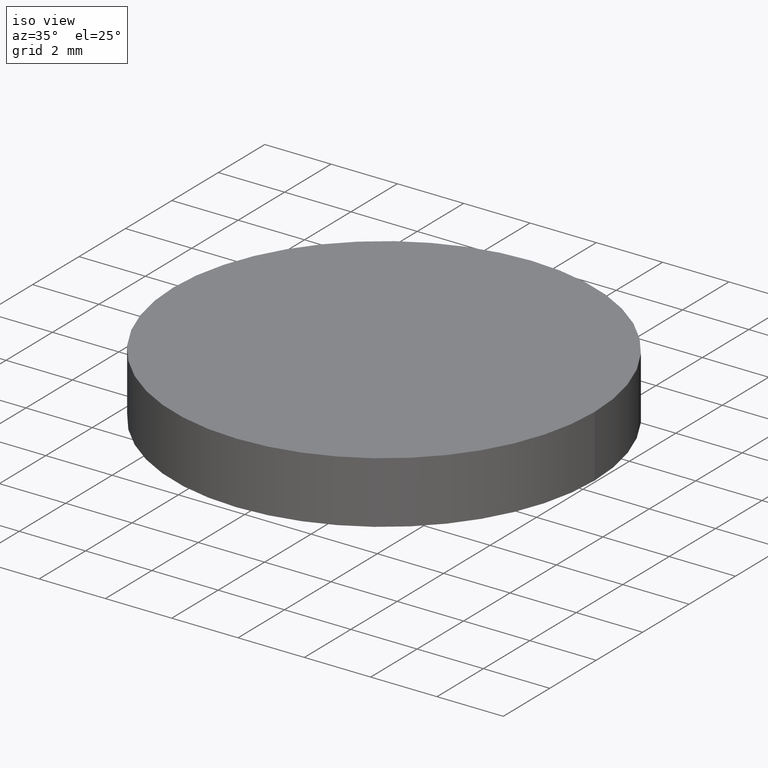
[diagram: clean part render]
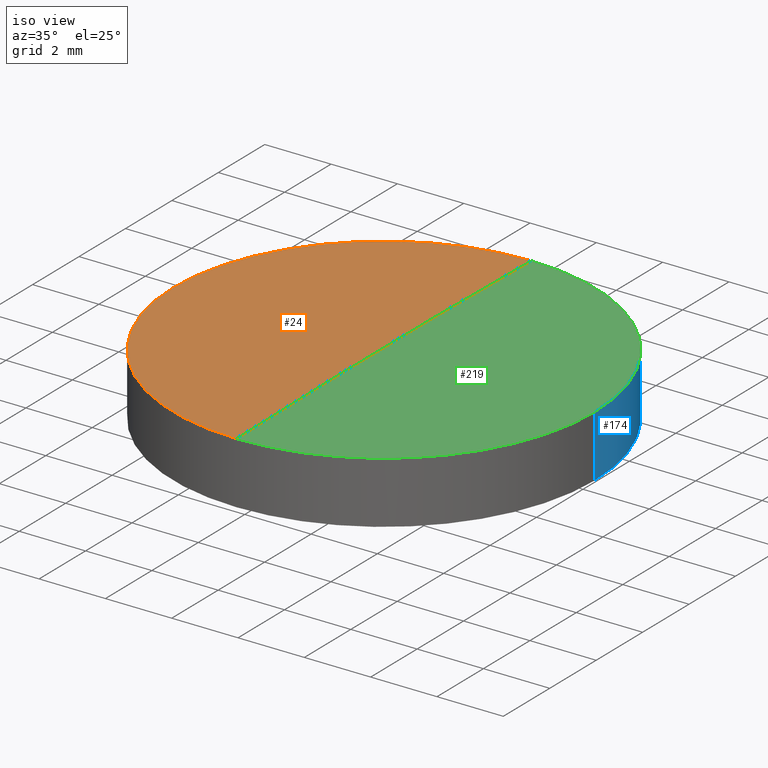
[diagram: same view with three faces highlighted in distinct colors, each labeled with its STEP entity id]
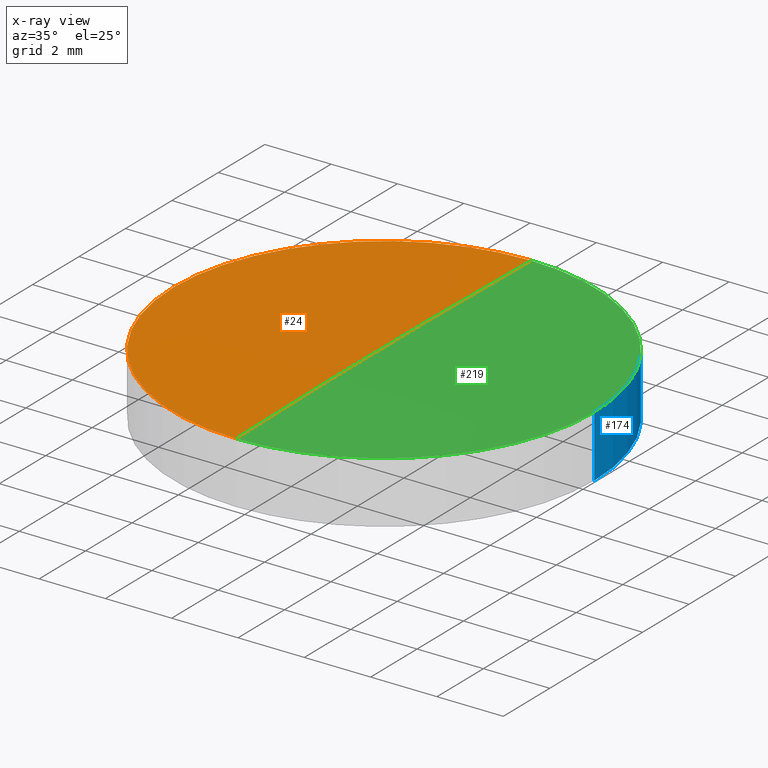
[diagram: x-ray of the same camera — body ghosted, the three highlighted faces saturated]
A machine part, iso view with three faces highlighted in distinct colors.
The next image is the same camera in x-ray (body ghosted, the three faces saturated) — at least one of them is partly hidden behind the body in this view.
Their STEP definitions:

[orange] entity #24 — the highlighted face is a freeform B-spline surface patch.
#5 = CARTESIAN_POINT ( 'NONE',  ( -6.386729902696654200, -6.426189210769681600, 1.867958086700777900 ) ) ;
#24 = ADVANCED_FACE ( 'NONE', ( #59 ), #284, .T. ) ;
#27 = CARTESIAN_POINT ( 'NONE',  ( 2.498001805406600200E-016, 1.221245327087670000E-015, 1.935145213664670100 ) ) ;
#33 = CARTESIAN_POINT ( 'NONE',  ( 9.805510406251404500E-014, 6.350000000000327400, 1.935145213664669400 ) ) ;
#48 = CIRCLE ( 'NONE', #166, 6.349999999999999600 ) ;
#49 = AXIS2_PLACEMENT_3D ( 'NONE', #27, #134, #157 ) ;
#50 = ORIENTED_EDGE ( 'NONE', *, *, #103, .F. ) ;
#51 = CARTESIAN_POINT ( 'NONE',  ( -6.388549635048087300, 2.142368200197913600, 1.956503322797171500 ) ) ;
#58 = CARTESIAN_POINT ( 'NONE',  ( 0.0000000000000000000, -5.684341886080800200E-014, -308.9000000000000300 ) ) ;
#59 = FACE_OUTER_BOUND ( 'NONE', #72, .T. ) ;
#69 = VERTEX_POINT ( 'NONE', #227 ) ;
#72 = EDGE_LOOP ( 'NONE', ( #73, #254, #50 ) ) ;
#73 = ORIENTED_EDGE ( 'NONE', *, *, #143, .F. ) ;
#77 = VERTEX_POINT ( 'NONE', #33 ) ;
#79 = CARTESIAN_POINT ( 'NONE',  ( 2.498001805406600200E-016, 1.221245327087670000E-015, 1.935145213664670100 ) ) ;
#92 = EDGE_CURVE ( 'NONE', #69, #77, #273, .T. ) ;
#99 = CARTESIAN_POINT ( 'NONE',  ( -4.259295361755425400, -2.142368200197931400, 2.000262570119215600 ) ) ;
#102 = CARTESIAN_POINT ( 'NONE',  ( -2.129703883656322900, 2.142368200197915400, 2.022143348645517600 ) ) ;
#103 = EDGE_CURVE ( 'NONE', #290, #77, #48, .T. ) ;
#111 = CIRCLE ( 'NONE', #49, 6.349999999999999600 ) ;
#115 = AXIS2_PLACEMENT_3D ( 'NONE', #58, #176, #289 ) ;
#116 = CARTESIAN_POINT ( 'NONE',  ( -6.349999999999999600, 1.998896044546239400E-015, 1.935145213664670100 ) ) ;
#128 = CARTESIAN_POINT ( 'NONE',  ( -6.388549635048085500, -2.142368200197931800, 1.956503322797170200 ) ) ;
#130 = CARTESIAN_POINT ( 'NONE',  ( 1.012582030574349000E-013, -2.142368200197929600, 2.022143348645515800 ) ) ;
#134 = DIRECTION ( 'NONE',  ( -0.0000000000000000000, -0.0000000000000000000, -1.000000000000000000 ) ) ;
#143 = EDGE_CURVE ( 'NONE', #69, #290, #111, .T. ) ;
#151 = CARTESIAN_POINT ( 'NONE',  ( 1.028311548038678000E-013, -6.426189210769679000, 1.933579415460517900 ) ) ;
#155 = CARTESIAN_POINT ( 'NONE',  ( -6.386729902696659500, 6.426189210769663000, 1.867958086700777900 ) ) ;
#157 = DIRECTION ( 'NONE',  ( 1.000000000000000000, 0.0000000000000000000, 0.0000000000000000000 ) ) ;
#166 = AXIS2_PLACEMENT_3D ( 'NONE', #79, #276, #197 ) ;
#176 = DIRECTION ( 'NONE',  ( -1.000000000000000000, -3.738639560994800200E-016, 3.230945461933270100E-016 ) ) ;
#194 = CARTESIAN_POINT ( 'NONE',  ( 9.802611376190352000E-014, 6.426189210769665600, 1.933579415460517900 ) ) ;
#197 = DIRECTION ( 'NONE',  ( 1.000000000000000000, 0.0000000000000000000, 0.0000000000000000000 ) ) ;
#220 = CARTESIAN_POINT ( 'NONE',  ( -2.129703883656321600, -2.142368200197930900, 2.022143348645516300 ) ) ;
#221 = CARTESIAN_POINT ( 'NONE',  ( -4.258082132148264700, 6.426189210769663000, 1.911704869516389600 ) ) ;
#222 = CARTESIAN_POINT ( 'NONE',  ( -2.129097252843785300, 6.426189210769663900, 1.933579415460518600 ) ) ;
#227 = CARTESIAN_POINT ( 'NONE',  ( 1.028031763049777000E-013, -6.350000000000384200, 1.935145213664669400 ) ) ;
#245 = CARTESIAN_POINT ( 'NONE',  ( -4.258082132148259400, -6.426189210769680700, 1.911704869516389600 ) ) ;
#246 = CARTESIAN_POINT ( 'NONE',  ( -4.259295361755427200, 2.142368200197915000, 2.000262570119216500 ) ) ;
#254 = ORIENTED_EDGE ( 'NONE', *, *, #92, .T. ) ;
#268 = CARTESIAN_POINT ( 'NONE',  ( 9.965629455593946100E-014, 2.142368200197915900, 2.022143348645517100 ) ) ;
#273 = CIRCLE ( 'NONE', #115, 310.9000000000000300 ) ;
#276 = DIRECTION ( 'NONE',  ( -0.0000000000000000000, -0.0000000000000000000, -1.000000000000000000 ) ) ;
#284 =( BOUNDED_SURFACE ( )  B_SPLINE_SURFACE ( 3, 3, ( 
 ( #151, #285, #245, #5 ),
 ( #130, #220, #99, #128 ),
 ( #268, #102, #246, #51 ),
 ( #194, #222, #221, #155 ) ),
 .UNSPECIFIED., .F., .F., .F. ) 
 B_SPLINE_SURFACE_WITH_KNOTS ( ( 4, 4 ),
 ( 4, 4 ),
 ( 0.0000000000000000000, 1.000000000000000000 ),
 ( 0.0000000000000000000, 1.000000000000000000 ),
 .UNSPECIFIED. ) 
 GEOMETRIC_REPRESENTATION_ITEM ( )  RATIONAL_B_SPLINE_SURFACE ( (
 ( 1.000000000000000000, 0.9999648134002164800, 0.9999648134002164800, 1.000000000000000000),
 ( 0.9998575735294530400, 0.9998223919411727300, 0.9998223919411727300, 0.9998575735294530400),
 ( 0.9998575735294530400, 0.9998223919411727300, 0.9998223919411727300, 0.9998575735294530400),
 ( 1.000000000000000000, 0.9999648134002164800, 0.9999648134002164800, 1.000000000000000000) ) ) 
 REPRESENTATION_ITEM ( '' )  SURFACE ( )  );
#285 = CARTESIAN_POINT ( 'NONE',  ( -2.129097252843780400, -6.426189210769679900, 1.933579415460518600 ) ) ;
#289 = DIRECTION ( 'NONE',  ( 3.738639560994799200E-016, -1.000000000000000000, 0.0000000000000000000 ) ) ;
#290 = VERTEX_POINT ( 'NONE', #116 ) ;

[blue] entity #174 — the highlighted cylindrical surface (partial cylindrical patch) has radius 6.35 mm, axis along (0, 0, 1).
#7 = DIRECTION ( 'NONE',  ( -0.0000000000000000000, -0.0000000000000000000, -1.000000000000000000 ) ) ;
#9 = DIRECTION ( 'NONE',  ( -0.0000000000000000000, -0.0000000000000000000, -1.000000000000000000 ) ) ;
#14 = CARTESIAN_POINT ( 'NONE',  ( 2.498001805406600200E-016, 1.221245327087670000E-015, 0.06485478633533430000 ) ) ;
#20 = LINE ( 'NONE', #110, #267 ) ;
#23 = ORIENTED_EDGE ( 'NONE', *, *, #126, .F. ) ;
#29 = CARTESIAN_POINT ( 'NONE',  ( 2.498001805406600200E-016, 1.221245327087670000E-015, 0.06485478633533430000 ) ) ;
#33 = CARTESIAN_POINT ( 'NONE',  ( 9.805510406251404500E-014, 6.350000000000327400, 1.935145213664669400 ) ) ;
#48 = CIRCLE ( 'NONE', #166, 6.349999999999999600 ) ;
#53 = DIRECTION ( 'NONE',  ( 0.0000000000000000000, 0.0000000000000000000, 1.000000000000000000 ) ) ;
#54 = ORIENTED_EDGE ( 'NONE', *, *, #123, .F. ) ;
#56 = DIRECTION ( 'NONE',  ( 1.000000000000000000, 8.881784197001252300E-016, 0.0000000000000000000 ) ) ;
#57 = DIRECTION ( 'NONE',  ( 0.0000000000000000000, 0.0000000000000000000, 1.000000000000000000 ) ) ;
#60 = EDGE_CURVE ( 'NONE', #77, #148, #117, .T. ) ;
#61 = CARTESIAN_POINT ( 'NONE',  ( -9.805510406251405700E-014, 6.350000000000327400, 0.06485478633533377200 ) ) ;
#68 = EDGE_CURVE ( 'NONE', #257, #101, #226, .T. ) ;
#74 = AXIS2_PLACEMENT_3D ( 'NONE', #291, #9, #56 ) ;
#77 = VERTEX_POINT ( 'NONE', #33 ) ;
#79 = CARTESIAN_POINT ( 'NONE',  ( 2.498001805406600200E-016, 1.221245327087670000E-015, 1.935145213664670100 ) ) ;
#80 = CARTESIAN_POINT ( 'NONE',  ( 2.498001805406600200E-016, 1.221245327087670000E-015, 1.935145213664670100 ) ) ;
#81 = EDGE_CURVE ( 'NONE', #257, #290, #135, .T. ) ;
#98 = AXIS2_PLACEMENT_3D ( 'NONE', #80, #108, #274 ) ;
#101 = VERTEX_POINT ( 'NONE', #61 ) ;
#103 = EDGE_CURVE ( 'NONE', #290, #77, #48, .T. ) ;
#108 = DIRECTION ( 'NONE',  ( -0.0000000000000000000, -0.0000000000000000000, -1.000000000000000000 ) ) ;
#110 = CARTESIAN_POINT ( 'NONE',  ( 6.349999999999999600, 1.221245327087670000E-015, 0.06485478633533430000 ) ) ;
#114 = CARTESIAN_POINT ( 'NONE',  ( -6.349999999999999600, 1.998896044546239400E-015, 0.06485478633533430000 ) ) ;
#116 = CARTESIAN_POINT ( 'NONE',  ( -6.349999999999999600, 1.998896044546239400E-015, 1.935145213664670100 ) ) ;
#117 = CIRCLE ( 'NONE', #98, 6.349999999999999600 ) ;
#122 = ORIENTED_EDGE ( 'NONE', *, *, #103, .T. ) ;
#123 = EDGE_CURVE ( 'NONE', #294, #148, #20, .T. ) ;
#126 = EDGE_CURVE ( 'NONE', #101, #294, #150, .T. ) ;
#135 = LINE ( 'NONE', #252, #218 ) ;
#136 = DIRECTION ( 'NONE',  ( 1.000000000000000000, -1.776356839400250500E-015, 0.0000000000000000000 ) ) ;
#148 = VERTEX_POINT ( 'NONE', #179 ) ;
#150 = CIRCLE ( 'NONE', #287, 6.349999999999999600 ) ;
#166 = AXIS2_PLACEMENT_3D ( 'NONE', #79, #276, #197 ) ;
#174 = ADVANCED_FACE ( 'NONE', ( #213 ), #202, .T. ) ;
#179 = CARTESIAN_POINT ( 'NONE',  ( 6.349999999999999600, 1.221245327087670000E-015, 1.935145213664670100 ) ) ;
#185 = ORIENTED_EDGE ( 'NONE', *, *, #68, .F. ) ;
#197 = DIRECTION ( 'NONE',  ( 1.000000000000000000, 0.0000000000000000000, 0.0000000000000000000 ) ) ;
#202 = CYLINDRICAL_SURFACE ( 'NONE', #265, 6.349999999999999600 ) ;
#213 = FACE_OUTER_BOUND ( 'NONE', #244, .T. ) ;
#218 = VECTOR ( 'NONE', #230, 1000.000000000000000 ) ;
#223 = DIRECTION ( 'NONE',  ( 1.000000000000000000, 0.0000000000000000000, 0.0000000000000000000 ) ) ;
#226 = CIRCLE ( 'NONE', #74, 6.349999999999999600 ) ;
#230 = DIRECTION ( 'NONE',  ( 0.0000000000000000000, 0.0000000000000000000, 1.000000000000000000 ) ) ;
#243 = ORIENTED_EDGE ( 'NONE', *, *, #60, .T. ) ;
#244 = EDGE_LOOP ( 'NONE', ( #185, #264, #122, #243, #54, #23 ) ) ;
#252 = CARTESIAN_POINT ( 'NONE',  ( -6.349999999999999600, 1.998896044546239400E-015, 0.06485478633533430000 ) ) ;
#255 = CARTESIAN_POINT ( 'NONE',  ( 6.349999999999999600, 1.221245327087670000E-015, 0.06485478633533430000 ) ) ;
#257 = VERTEX_POINT ( 'NONE', #114 ) ;
#264 = ORIENTED_EDGE ( 'NONE', *, *, #81, .T. ) ;
#265 = AXIS2_PLACEMENT_3D ( 'NONE', #14, #53, #223 ) ;
#267 = VECTOR ( 'NONE', #57, 1000.000000000000000 ) ;
#274 = DIRECTION ( 'NONE',  ( 1.000000000000000000, 0.0000000000000000000, 0.0000000000000000000 ) ) ;
#276 = DIRECTION ( 'NONE',  ( -0.0000000000000000000, -0.0000000000000000000, -1.000000000000000000 ) ) ;
#287 = AXIS2_PLACEMENT_3D ( 'NONE', #29, #7, #136 ) ;
#290 = VERTEX_POINT ( 'NONE', #116 ) ;
#291 = CARTESIAN_POINT ( 'NONE',  ( 2.498001805406600200E-016, 1.221245327087670000E-015, 0.06485478633533430000 ) ) ;
#294 = VERTEX_POINT ( 'NONE', #255 ) ;

[green] entity #219 — the highlighted face is a freeform B-spline surface patch.
#2 = CARTESIAN_POINT ( 'NONE',  ( 6.388549635048288000, -2.142368200197927000, 1.956503322797152900 ) ) ;
#17 = CARTESIAN_POINT ( 'NONE',  ( 1.752070710736575200E-013, 6.426189210769665600, 1.933579415460536800 ) ) ;
#19 = CARTESIAN_POINT ( 'NONE',  ( 4.259295361755651000, 2.142368200197918100, 2.000262570119200100 ) ) ;
#28 = AXIS2_PLACEMENT_3D ( 'NONE', #132, #31, #199 ) ;
#31 = DIRECTION ( 'NONE',  ( -0.0000000000000000000, -0.0000000000000000000, -1.000000000000000000 ) ) ;
#33 = CARTESIAN_POINT ( 'NONE',  ( 9.805510406251404500E-014, 6.350000000000327400, 1.935145213664669400 ) ) ;
#44 = CARTESIAN_POINT ( 'NONE',  ( 4.258082132148490300, -6.426189210769677200, 1.911704869516373200 ) ) ;
#58 = CARTESIAN_POINT ( 'NONE',  ( 0.0000000000000000000, -5.684341886080800200E-014, -308.9000000000000300 ) ) ;
#60 = EDGE_CURVE ( 'NONE', #77, #148, #117, .T. ) ;
#62 = CARTESIAN_POINT ( 'NONE',  ( 6.388549635048286200, 2.142368200197918500, 1.956503322797154200 ) ) ;
#64 = CARTESIAN_POINT ( 'NONE',  ( 2.129097252844037900, -6.426189210769678100, 1.933579415460535500 ) ) ;
#69 = VERTEX_POINT ( 'NONE', #227 ) ;
#75 = EDGE_CURVE ( 'NONE', #148, #69, #172, .T. ) ;
#77 = VERTEX_POINT ( 'NONE', #33 ) ;
#80 = CARTESIAN_POINT ( 'NONE',  ( 2.498001805406600200E-016, 1.221245327087670000E-015, 1.935145213664670100 ) ) ;
#86 = EDGE_LOOP ( 'NONE', ( #180, #159, #125 ) ) ;
#92 = EDGE_CURVE ( 'NONE', #69, #77, #273, .T. ) ;
#98 = AXIS2_PLACEMENT_3D ( 'NONE', #80, #108, #274 ) ;
#108 = DIRECTION ( 'NONE',  ( -0.0000000000000000000, -0.0000000000000000000, -1.000000000000000000 ) ) ;
#115 = AXIS2_PLACEMENT_3D ( 'NONE', #58, #176, #289 ) ;
#117 = CIRCLE ( 'NONE', #98, 6.349999999999999600 ) ;
#125 = ORIENTED_EDGE ( 'NONE', *, *, #60, .F. ) ;
#132 = CARTESIAN_POINT ( 'NONE',  ( 2.498001805406600200E-016, 1.221245327087670000E-015, 1.935145213664670100 ) ) ;
#142 = CARTESIAN_POINT ( 'NONE',  ( 6.386729902696855800, 6.426189210769668300, 1.867958086700760600 ) ) ;
#145 = CARTESIAN_POINT ( 'NONE',  ( 2.129097252844032600, 6.426189210769665600, 1.933579415460535500 ) ) ;
#148 = VERTEX_POINT ( 'NONE', #179 ) ;
#159 = ORIENTED_EDGE ( 'NONE', *, *, #75, .F. ) ;
#161 = CARTESIAN_POINT ( 'NONE',  ( 1.760744328116458900E-013, 2.142368200197916300, 2.022143348645535800 ) ) ;
#170 =( BOUNDED_SURFACE ( )  B_SPLINE_SURFACE ( 3, 3, ( 
 ( #203, #44, #64, #207 ),
 ( #2, #279, #211, #234 ),
 ( #62, #19, #239, #161 ),
 ( #142, #260, #145, #17 ) ),
 .UNSPECIFIED., .F., .F., .T. ) 
 B_SPLINE_SURFACE_WITH_KNOTS ( ( 4, 4 ),
 ( 4, 4 ),
 ( 0.0000000000000000000, 1.000000000000000000 ),
 ( 0.0000000000000000000, 1.000000000000000000 ),
 .UNSPECIFIED. ) 
 GEOMETRIC_REPRESENTATION_ITEM ( )  RATIONAL_B_SPLINE_SURFACE ( (
 ( 1.000000000000000000, 0.9999648134002164800, 0.9999648134002164800, 1.000000000000000000),
 ( 0.9998575735294530400, 0.9998223919411727300, 0.9998223919411727300, 0.9998575735294530400),
 ( 0.9998575735294530400, 0.9998223919411727300, 0.9998223919411727300, 0.9998575735294530400),
 ( 1.000000000000000000, 0.9999648134002164800, 0.9999648134002164800, 1.000000000000000000) ) ) 
 REPRESENTATION_ITEM ( '' )  SURFACE ( )  );
#172 = CIRCLE ( 'NONE', #28, 6.349999999999999600 ) ;
#176 = DIRECTION ( 'NONE',  ( -1.000000000000000000, -3.738639560994800200E-016, 3.230945461933270100E-016 ) ) ;
#179 = CARTESIAN_POINT ( 'NONE',  ( 6.349999999999999600, 1.221245327087670000E-015, 1.935145213664670100 ) ) ;
#180 = ORIENTED_EDGE ( 'NONE', *, *, #92, .F. ) ;
#199 = DIRECTION ( 'NONE',  ( 1.000000000000000000, 0.0000000000000000000, 0.0000000000000000000 ) ) ;
#203 = CARTESIAN_POINT ( 'NONE',  ( 6.386729902696860300, -6.426189210769676300, 1.867958086700760600 ) ) ;
#207 = CARTESIAN_POINT ( 'NONE',  ( 1.804112415015879400E-013, -6.426189210769679000, 1.933579415460536800 ) ) ;
#211 = CARTESIAN_POINT ( 'NONE',  ( 2.129703883656574700, -2.142368200197928700, 2.022143348645532700 ) ) ;
#219 = ADVANCED_FACE ( 'NONE', ( #281 ), #170, .T. ) ;
#227 = CARTESIAN_POINT ( 'NONE',  ( 1.028031763049777000E-013, -6.350000000000384200, 1.935145213664669400 ) ) ;
#234 = CARTESIAN_POINT ( 'NONE',  ( 1.778091562876227300E-013, -2.142368200197929200, 2.022143348645534500 ) ) ;
#239 = CARTESIAN_POINT ( 'NONE',  ( 2.129703883656572900, 2.142368200197917600, 2.022143348645534000 ) ) ;
#260 = CARTESIAN_POINT ( 'NONE',  ( 4.258082132148485900, 6.426189210769666500, 1.911704869516373200 ) ) ;
#273 = CIRCLE ( 'NONE', #115, 310.9000000000000300 ) ;
#274 = DIRECTION ( 'NONE',  ( 1.000000000000000000, 0.0000000000000000000, 0.0000000000000000000 ) ) ;
#279 = CARTESIAN_POINT ( 'NONE',  ( 4.259295361755652800, -2.142368200197928300, 2.000262570119198700 ) ) ;
#281 = FACE_OUTER_BOUND ( 'NONE', #86, .T. ) ;
#289 = DIRECTION ( 'NONE',  ( 3.738639560994799200E-016, -1.000000000000000000, 0.0000000000000000000 ) ) ;